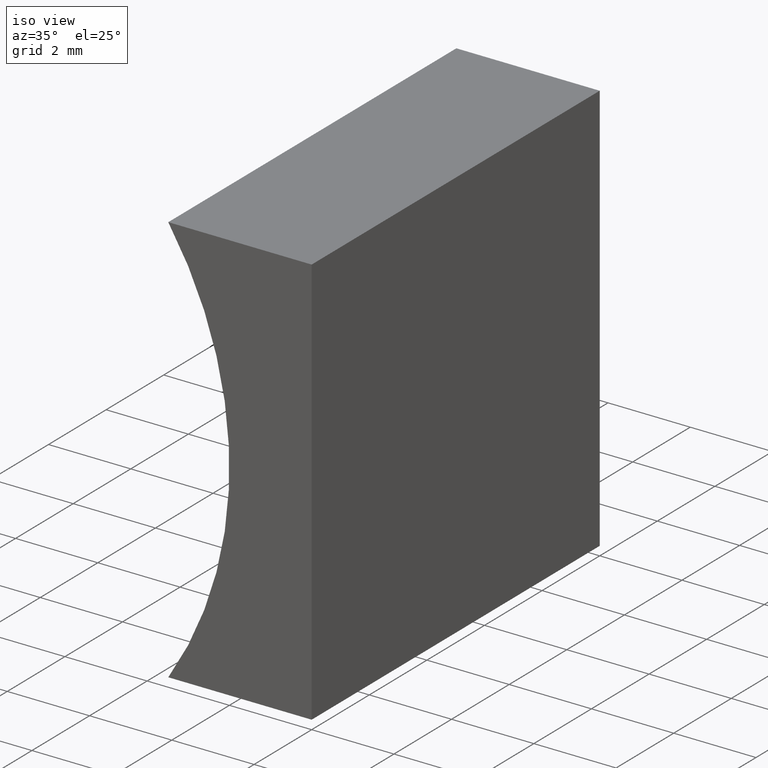
[diagram: clean part render]
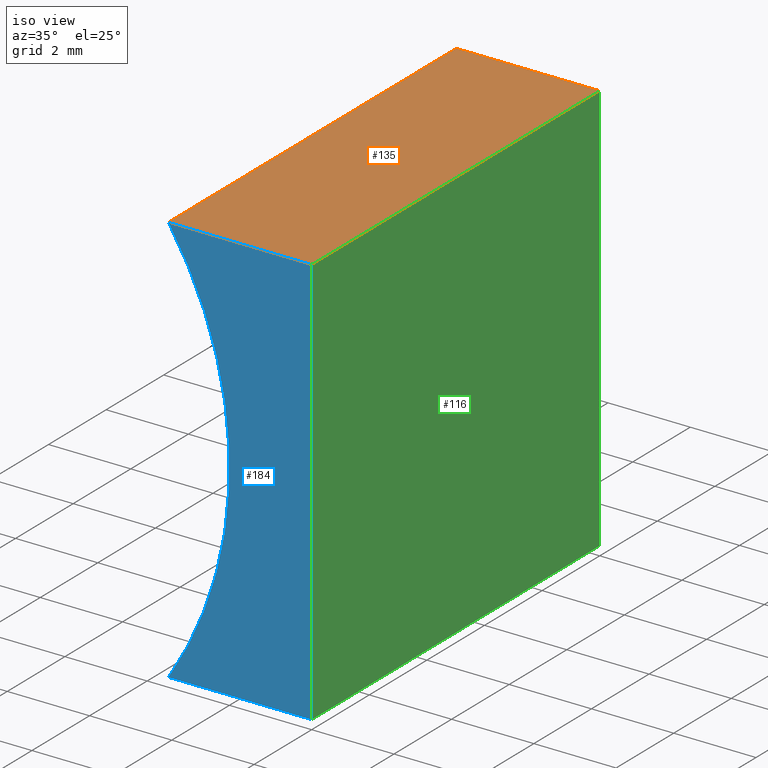
[diagram: same view with three faces highlighted in distinct colors, each labeled with its STEP entity id]
A machine part, iso view with three faces highlighted in distinct colors.
Their STEP definitions:

[orange] entity #135 — the highlighted planar face has unit normal (0, 0, -1).
#5 = DIRECTION ( 'NONE',  ( -1.000000000000000000, 0.0000000000000000000, -0.0000000000000000000 ) ) ;
#7 = CARTESIAN_POINT ( 'NONE',  ( -3.485001628664668800, 0.0000000000000000000, 10.00000000000000000 ) ) ;
#26 = VERTEX_POINT ( 'NONE', #109 ) ;
#27 = LINE ( 'NONE', #126, #112 ) ;
#28 = DIRECTION ( 'NONE',  ( 1.000000000000000000, -0.0000000000000000000, -0.0000000000000000000 ) ) ;
#43 = AXIS2_PLACEMENT_3D ( 'NONE', #64, #98, #5 ) ;
#49 = CARTESIAN_POINT ( 'NONE',  ( 6.123233995736766300E-016, 0.0000000000000000000, 10.00000000000000000 ) ) ;
#51 = ORIENTED_EDGE ( 'NONE', *, *, #130, .F. ) ;
#53 = VECTOR ( 'NONE', #163, 1000.000000000000000 ) ;
#64 = CARTESIAN_POINT ( 'NONE',  ( 6.123233995736766300E-016, 10.00000000000000000, 10.00000000000000000 ) ) ;
#68 = LINE ( 'NONE', #49, #108 ) ;
#74 = FACE_OUTER_BOUND ( 'NONE', #119, .T. ) ;
#75 = VERTEX_POINT ( 'NONE', #158 ) ;
#86 = CARTESIAN_POINT ( 'NONE',  ( -3.485001628664668800, 10.00000000000000000, 10.00000000000000000 ) ) ;
#87 = ORIENTED_EDGE ( 'NONE', *, *, #170, .T. ) ;
#96 = LINE ( 'NONE', #131, #53 ) ;
#98 = DIRECTION ( 'NONE',  ( 0.0000000000000000000, 0.0000000000000000000, -1.000000000000000000 ) ) ;
#99 = DIRECTION ( 'NONE',  ( -0.0000000000000000000, -1.000000000000000000, -0.0000000000000000000 ) ) ;
#108 = VECTOR ( 'NONE', #28, 1000.000000000000000 ) ;
#109 = CARTESIAN_POINT ( 'NONE',  ( -3.485001628664668800, 10.00000000000000000, 10.00000000000000000 ) ) ;
#112 = VECTOR ( 'NONE', #161, 1000.000000000000000 ) ;
#118 = EDGE_CURVE ( 'NONE', #185, #162, #68, .T. ) ;
#119 = EDGE_LOOP ( 'NONE', ( #193, #171, #51, #87 ) ) ;
#126 = CARTESIAN_POINT ( 'NONE',  ( 6.123233995736766300E-016, 10.00000000000000000, 10.00000000000000000 ) ) ;
#130 = EDGE_CURVE ( 'NONE', #26, #75, #27, .T. ) ;
#131 = CARTESIAN_POINT ( 'NONE',  ( 6.123233995736766300E-016, 10.00000000000000000, 10.00000000000000000 ) ) ;
#135 = ADVANCED_FACE ( 'NONE', ( #74 ), #192, .F. ) ;
#158 = CARTESIAN_POINT ( 'NONE',  ( 6.123233995736766300E-016, 10.00000000000000000, 10.00000000000000000 ) ) ;
#161 = DIRECTION ( 'NONE',  ( 1.000000000000000000, -0.0000000000000000000, -0.0000000000000000000 ) ) ;
#162 = VERTEX_POINT ( 'NONE', #177 ) ;
#163 = DIRECTION ( 'NONE',  ( -0.0000000000000000000, -1.000000000000000000, -0.0000000000000000000 ) ) ;
#170 = EDGE_CURVE ( 'NONE', #26, #185, #196, .T. ) ;
#171 = ORIENTED_EDGE ( 'NONE', *, *, #186, .F. ) ;
#177 = CARTESIAN_POINT ( 'NONE',  ( 6.123233995736766300E-016, 0.0000000000000000000, 10.00000000000000000 ) ) ;
#182 = VECTOR ( 'NONE', #99, 1000.000000000000000 ) ;
#185 = VERTEX_POINT ( 'NONE', #7 ) ;
#186 = EDGE_CURVE ( 'NONE', #75, #162, #96, .T. ) ;
#192 = PLANE ( 'NONE',  #43 ) ;
#193 = ORIENTED_EDGE ( 'NONE', *, *, #118, .T. ) ;
#196 = LINE ( 'NONE', #86, #182 ) ;

[blue] entity #184 — the highlighted planar face has unit normal (0, 1, 0).
#3 = ORIENTED_EDGE ( 'NONE', *, *, #176, .F. ) ;
#7 = CARTESIAN_POINT ( 'NONE',  ( -3.485001628664668800, 0.0000000000000000000, 10.00000000000000000 ) ) ;
#20 = CARTESIAN_POINT ( 'NONE',  ( 0.0000000000000000000, 0.0000000000000000000, 0.0000000000000000000 ) ) ;
#21 = CARTESIAN_POINT ( 'NONE',  ( -11.16000000000000000, 0.0000000000000000000, 5.000000000000000900 ) ) ;
#25 = EDGE_LOOP ( 'NONE', ( #39, #58, #73, #3 ) ) ;
#28 = DIRECTION ( 'NONE',  ( 1.000000000000000000, -0.0000000000000000000, -0.0000000000000000000 ) ) ;
#35 = VECTOR ( 'NONE', #66, 1000.000000000000000 ) ;
#36 = CARTESIAN_POINT ( 'NONE',  ( -11.16000000000000000, 0.0000000000000000000, 5.000000000000000900 ) ) ;
#38 = EDGE_CURVE ( 'NONE', #137, #45, #172, .T. ) ;
#39 = ORIENTED_EDGE ( 'NONE', *, *, #38, .F. ) ;
#45 = VERTEX_POINT ( 'NONE', #174 ) ;
#48 = AXIS2_PLACEMENT_3D ( 'NONE', #36, #152, #50 ) ;
#49 = CARTESIAN_POINT ( 'NONE',  ( 6.123233995736766300E-016, 0.0000000000000000000, 10.00000000000000000 ) ) ;
#50 = DIRECTION ( 'NONE',  ( 0.0000000000000000000, 0.0000000000000000000, 1.000000000000000000 ) ) ;
#58 = ORIENTED_EDGE ( 'NONE', *, *, #151, .F. ) ;
#61 = VECTOR ( 'NONE', #80, 1000.000000000000000 ) ;
#65 = CARTESIAN_POINT ( 'NONE',  ( 0.0000000000000000000, 0.0000000000000000000, 0.0000000000000000000 ) ) ;
#66 = DIRECTION ( 'NONE',  ( -6.123233995736766000E-017, -0.0000000000000000000, -1.000000000000000000 ) ) ;
#68 = LINE ( 'NONE', #49, #108 ) ;
#73 = ORIENTED_EDGE ( 'NONE', *, *, #118, .F. ) ;
#80 = DIRECTION ( 'NONE',  ( -1.000000000000000000, 0.0000000000000000000, 1.701271715540642000E-016 ) ) ;
#82 = DIRECTION ( 'NONE',  ( 0.0000000000000000000, 1.000000000000000000, 0.0000000000000000000 ) ) ;
#108 = VECTOR ( 'NONE', #28, 1000.000000000000000 ) ;
#110 = FACE_OUTER_BOUND ( 'NONE', #25, .T. ) ;
#118 = EDGE_CURVE ( 'NONE', #185, #162, #68, .T. ) ;
#129 = PLANE ( 'NONE',  #146 ) ;
#137 = VERTEX_POINT ( 'NONE', #65 ) ;
#146 = AXIS2_PLACEMENT_3D ( 'NONE', #21, #82, #191 ) ;
#151 = EDGE_CURVE ( 'NONE', #162, #137, #169, .T. ) ;
#152 = DIRECTION ( 'NONE',  ( -0.0000000000000000000, -1.000000000000000000, -0.0000000000000000000 ) ) ;
#155 = CIRCLE ( 'NONE', #48, 9.159999999999998400 ) ;
#162 = VERTEX_POINT ( 'NONE', #177 ) ;
#169 = LINE ( 'NONE', #20, #35 ) ;
#172 = LINE ( 'NONE', #175, #61 ) ;
#174 = CARTESIAN_POINT ( 'NONE',  ( -3.485001628664670600, 0.0000000000000000000, 1.734723475976807100E-015 ) ) ;
#175 = CARTESIAN_POINT ( 'NONE',  ( 0.0000000000000000000, 0.0000000000000000000, 0.0000000000000000000 ) ) ;
#176 = EDGE_CURVE ( 'NONE', #45, #185, #155, .T. ) ;
#177 = CARTESIAN_POINT ( 'NONE',  ( 6.123233995736766300E-016, 0.0000000000000000000, 10.00000000000000000 ) ) ;
#184 = ADVANCED_FACE ( 'NONE', ( #110 ), #129, .F. ) ;
#185 = VERTEX_POINT ( 'NONE', #7 ) ;
#191 = DIRECTION ( 'NONE',  ( 0.0000000000000000000, -0.0000000000000000000, 1.000000000000000000 ) ) ;

[green] entity #116 — the highlighted planar face has unit normal (-1, 0, 0).
#17 = EDGE_CURVE ( 'NONE', #105, #137, #150, .T. ) ;
#20 = CARTESIAN_POINT ( 'NONE',  ( 0.0000000000000000000, 0.0000000000000000000, 0.0000000000000000000 ) ) ;
#24 = VECTOR ( 'NONE', #160, 1000.000000000000000 ) ;
#35 = VECTOR ( 'NONE', #66, 1000.000000000000000 ) ;
#41 = ORIENTED_EDGE ( 'NONE', *, *, #151, .T. ) ;
#47 = DIRECTION ( 'NONE',  ( -1.000000000000000000, 0.0000000000000000000, 6.123233995736766000E-017 ) ) ;
#53 = VECTOR ( 'NONE', #163, 1000.000000000000000 ) ;
#65 = CARTESIAN_POINT ( 'NONE',  ( 0.0000000000000000000, 0.0000000000000000000, 0.0000000000000000000 ) ) ;
#66 = DIRECTION ( 'NONE',  ( -6.123233995736766000E-017, -0.0000000000000000000, -1.000000000000000000 ) ) ;
#75 = VERTEX_POINT ( 'NONE', #158 ) ;
#83 = ORIENTED_EDGE ( 'NONE', *, *, #17, .F. ) ;
#84 = DIRECTION ( 'NONE',  ( -6.123233995736766000E-017, -0.0000000000000000000, -1.000000000000000000 ) ) ;
#96 = LINE ( 'NONE', #131, #53 ) ;
#105 = VERTEX_POINT ( 'NONE', #148 ) ;
#106 = EDGE_LOOP ( 'NONE', ( #41, #83, #203, #201 ) ) ;
#111 = CARTESIAN_POINT ( 'NONE',  ( 0.0000000000000000000, 10.00000000000000000, 0.0000000000000000000 ) ) ;
#116 = ADVANCED_FACE ( 'NONE', ( #145 ), #140, .F. ) ;
#120 = VECTOR ( 'NONE', #84, 1000.000000000000000 ) ;
#125 = CARTESIAN_POINT ( 'NONE',  ( 0.0000000000000000000, 10.00000000000000000, 0.0000000000000000000 ) ) ;
#131 = CARTESIAN_POINT ( 'NONE',  ( 6.123233995736766300E-016, 10.00000000000000000, 10.00000000000000000 ) ) ;
#137 = VERTEX_POINT ( 'NONE', #65 ) ;
#140 = PLANE ( 'NONE',  #167 ) ;
#141 = EDGE_CURVE ( 'NONE', #75, #105, #154, .T. ) ;
#143 = CARTESIAN_POINT ( 'NONE',  ( 0.0000000000000000000, 10.00000000000000000, 0.0000000000000000000 ) ) ;
#145 = FACE_OUTER_BOUND ( 'NONE', #106, .T. ) ;
#147 = DIRECTION ( 'NONE',  ( 6.123233995736766000E-017, 0.0000000000000000000, 1.000000000000000000 ) ) ;
#148 = CARTESIAN_POINT ( 'NONE',  ( 0.0000000000000000000, 10.00000000000000000, 0.0000000000000000000 ) ) ;
#150 = LINE ( 'NONE', #125, #24 ) ;
#151 = EDGE_CURVE ( 'NONE', #162, #137, #169, .T. ) ;
#154 = LINE ( 'NONE', #111, #120 ) ;
#158 = CARTESIAN_POINT ( 'NONE',  ( 6.123233995736766300E-016, 10.00000000000000000, 10.00000000000000000 ) ) ;
#160 = DIRECTION ( 'NONE',  ( -0.0000000000000000000, -1.000000000000000000, -0.0000000000000000000 ) ) ;
#162 = VERTEX_POINT ( 'NONE', #177 ) ;
#163 = DIRECTION ( 'NONE',  ( -0.0000000000000000000, -1.000000000000000000, -0.0000000000000000000 ) ) ;
#167 = AXIS2_PLACEMENT_3D ( 'NONE', #143, #47, #147 ) ;
#169 = LINE ( 'NONE', #20, #35 ) ;
#177 = CARTESIAN_POINT ( 'NONE',  ( 6.123233995736766300E-016, 0.0000000000000000000, 10.00000000000000000 ) ) ;
#186 = EDGE_CURVE ( 'NONE', #75, #162, #96, .T. ) ;
#201 = ORIENTED_EDGE ( 'NONE', *, *, #186, .T. ) ;
#203 = ORIENTED_EDGE ( 'NONE', *, *, #141, .F. ) ;